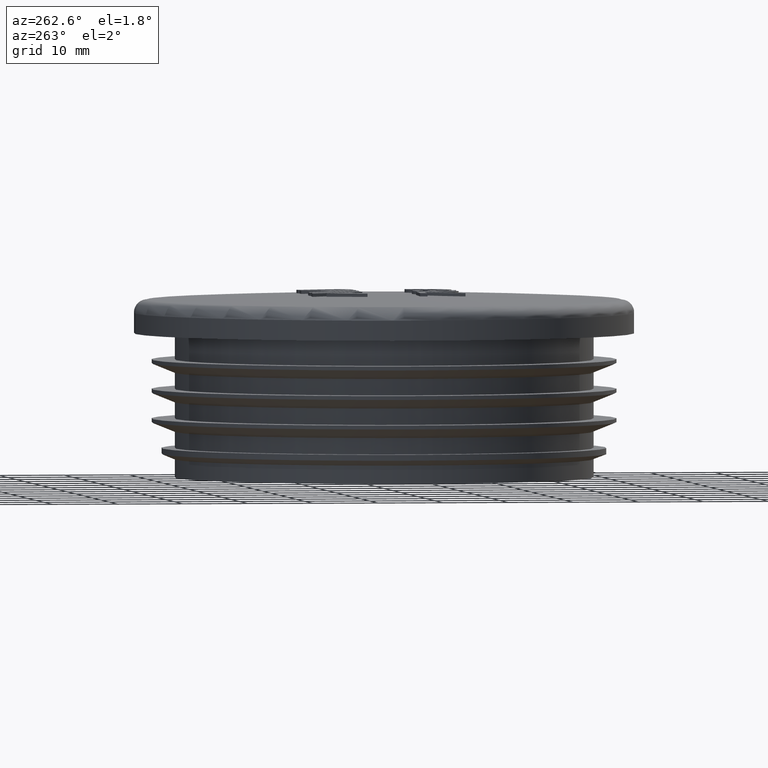
[diagram: clean part render]
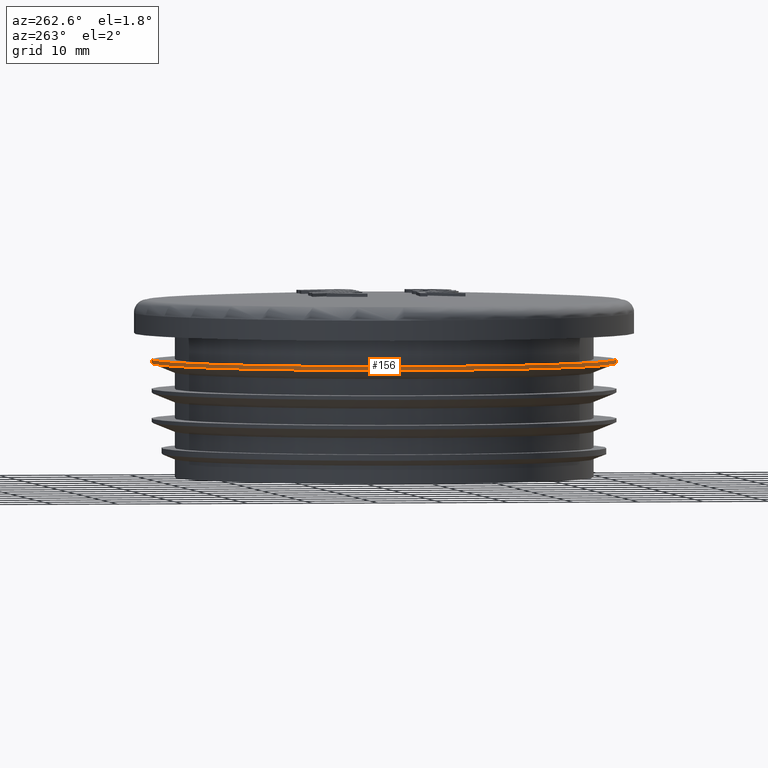
[diagram: same view with one face highlighted and labeled with its STEP entity id]
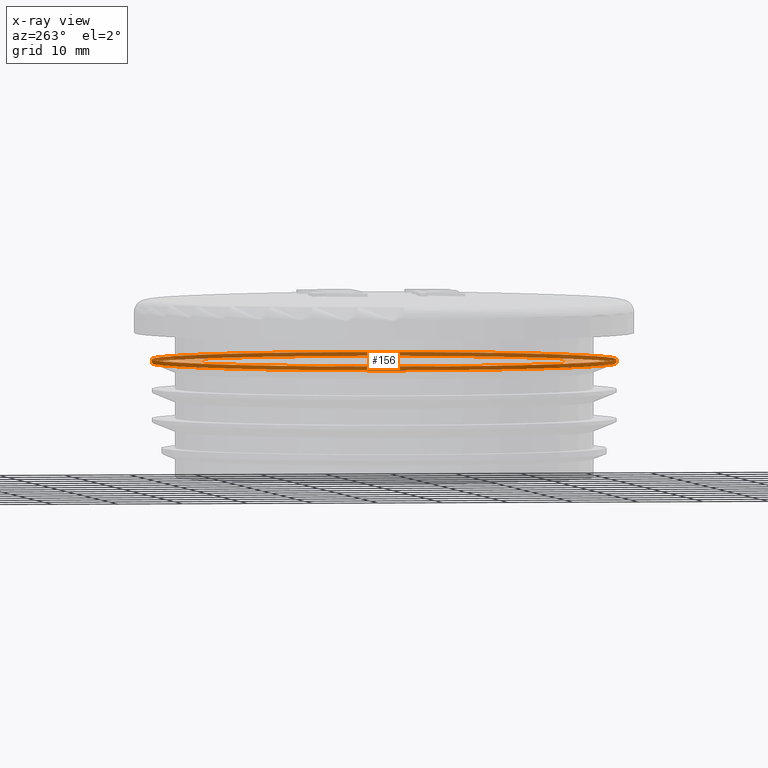
[diagram: x-ray of the same camera — body ghosted, the highlighted face saturated]
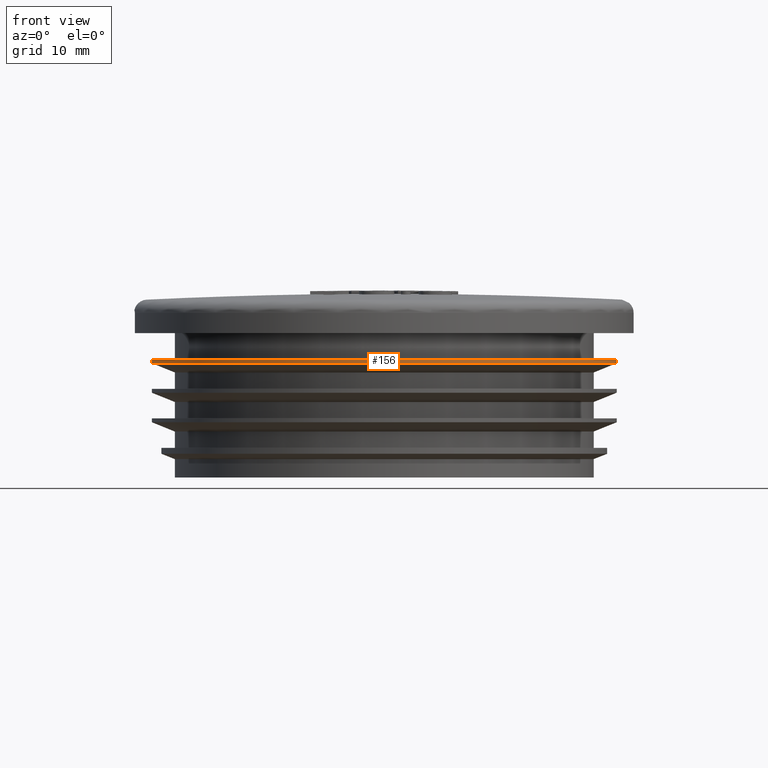
[diagram: same view with one face highlighted and labeled with its STEP entity id]
A machine part, auxiliary view. The second image highlights one B-rep face of the part: STEP entity #156.
The next image is the same camera in x-ray: the body ghosted, the highlighted face saturated — about 47% of this face is hidden behind the body in this view.
A second angle (front view) of the same face is appended — the face is thin or edge-on in the first view.
In plain terms, the highlighted cylindrical surface (bore or boss wall) has radius 35.45 mm, axis along (0, 0, 1).
Its self-contained STEP definition (entity closure, byte-faithful):
#156 = ADVANCED_FACE( '', ( #354, #355 ), #356, .T. );
#354 = FACE_OUTER_BOUND( '', #826, .T. );
#355 = FACE_OUTER_BOUND( '', #827, .T. );
#356 = CYLINDRICAL_SURFACE( '', #828, 35.4500000000000 );
#826 = EDGE_LOOP( '', ( #1506 ) );
#827 = EDGE_LOOP( '', ( #1507 ) );
#828 = AXIS2_PLACEMENT_3D( '', #1508, #1509, #1510 );
#1506 = ORIENTED_EDGE( '', *, *, #1696, .F. );
#1507 = ORIENTED_EDGE( '', *, *, #1697, .T. );
#1508 = CARTESIAN_POINT( '', ( 0.000000000000000, 0.000000000000000, 22.0000000000000 ) );
#1509 = DIRECTION( '', ( 0.000000000000000, 6.12303176911189E-017, 1.00000000000000 ) );
#1510 = DIRECTION( '', ( 0.000000000000000, 1.00000000000000, -6.12303176911189E-017 ) );
#1696 = EDGE_CURVE( '', #1989, #1989, #1990, .T. );
#1697 = EDGE_CURVE( '', #1991, #1991, #1992, .T. );
#1989 = VERTEX_POINT( '', #3341 );
#1990 = CIRCLE( '', #3342, 35.4500000000000 );
#1991 = VERTEX_POINT( '', #3343 );
#1992 = CIRCLE( '', #3344, 35.4500000000000 );
#3341 = CARTESIAN_POINT( '', ( 0.000000000000000, 35.4500000000000, 17.4140917904231 ) );
#3342 = AXIS2_PLACEMENT_3D( '', #3458, #3459, #3460 );
#3343 = CARTESIAN_POINT( '', ( 0.000000000000000, 35.4500000000000, 18.0000000000000 ) );
#3344 = AXIS2_PLACEMENT_3D( '', #3461, #3462, #3463 );
#3458 = CARTESIAN_POINT( '', ( 0.000000000000000, -2.80796616574706E-016, 17.4140917904231 ) );
#3459 = DIRECTION( '', ( 0.000000000000000, -6.12303176911189E-017, -1.00000000000000 ) );
#3460 = DIRECTION( '', ( 0.000000000000000, 1.00000000000000, -6.12303176911189E-017 ) );
#3461 = CARTESIAN_POINT( '', ( 0.000000000000000, -2.44921270764475E-016, 18.0000000000000 ) );
#3462 = DIRECTION( '', ( 0.000000000000000, -6.12303176911189E-017, -1.00000000000000 ) );
#3463 = DIRECTION( '', ( 0.000000000000000, 1.00000000000000, -6.12303176911189E-017 ) );